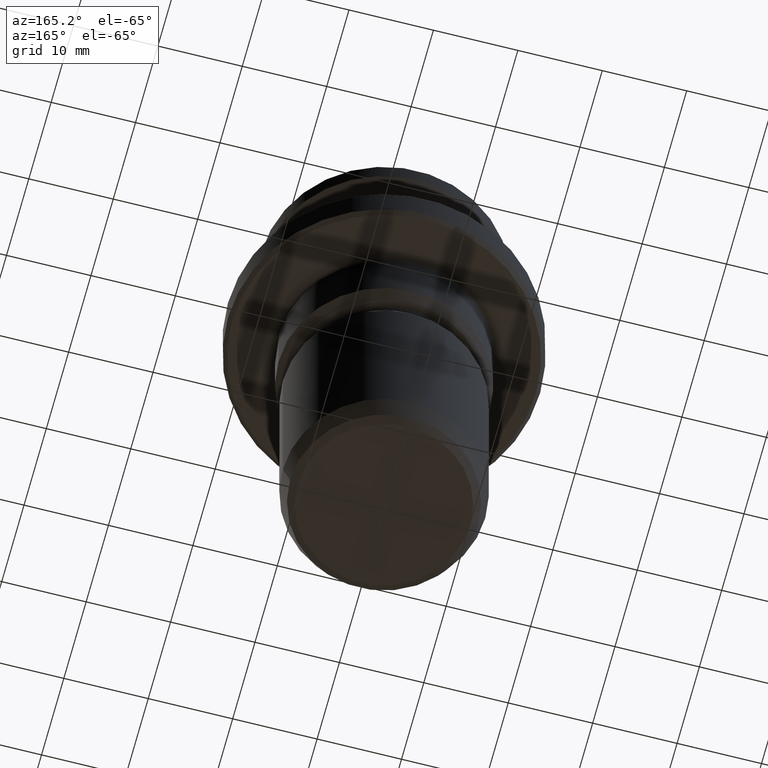
[diagram: clean part render]
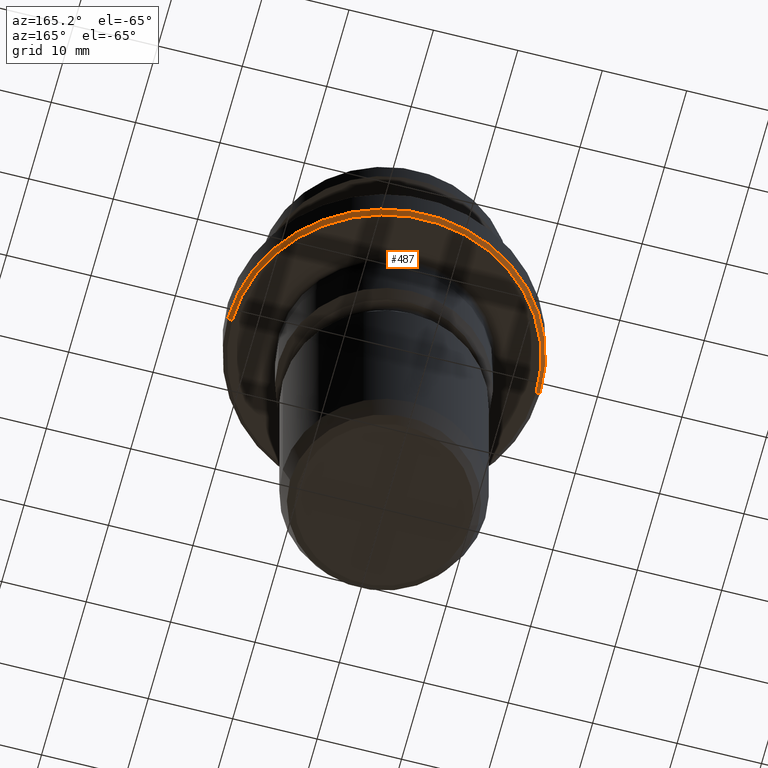
[diagram: same view with one face highlighted and labeled with its STEP entity id]
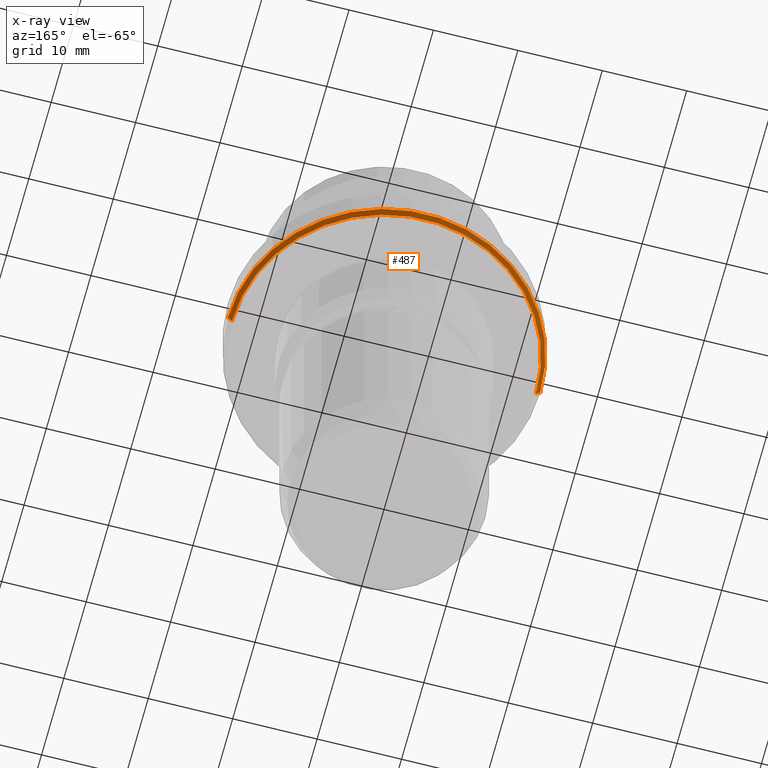
[diagram: x-ray of the same camera — body ghosted, the highlighted face saturated]
A machine part, auxiliary view. The second image highlights one B-rep face of the part: STEP entity #487.
The next image is the same camera in x-ray: the body ghosted, the highlighted face saturated — about 0% of this face is hidden behind the body in this view.
In plain terms, the highlighted conical surface has half-angle 45 deg.
Its self-contained STEP definition (entity closure, byte-faithful):
#2 = AXIS2_PLACEMENT_3D ( 'NONE', #138, #897, #1216 ) ;
#4 = VECTOR ( 'NONE', #873, 1000.000000000000000 ) ;
#9 = VECTOR ( 'NONE', #797, 1000.000000000000000 ) ;
#65 = EDGE_CURVE ( 'NONE', #967, #416, #884, .T. ) ;
#79 = DIRECTION ( 'NONE',  ( 1.000000000000000000, 0.0000000000000000000, 0.0000000000000000000 ) ) ;
#125 = CARTESIAN_POINT ( 'NONE',  ( -18.00000000000000000, 2.204364238465235400E-015, -25.50000000000000400 ) ) ;
#138 = CARTESIAN_POINT ( 'NONE',  ( 0.0000000000000000000, 0.0000000000000000000, -25.50000000000000400 ) ) ;
#143 = FACE_OUTER_BOUND ( 'NONE', #236, .T. ) ;
#233 = DIRECTION ( 'NONE',  ( -0.0000000000000000000, -0.0000000000000000000, 1.000000000000000000 ) ) ;
#236 = EDGE_LOOP ( 'NONE', ( #745, #981, #768, #651 ) ) ;
#238 = CARTESIAN_POINT ( 'NONE',  ( 18.00000000000000000, 0.0000000000000000000, -25.50000000000000400 ) ) ;
#255 = LINE ( 'NONE', #125, #4 ) ;
#258 = LINE ( 'NONE', #238, #9 ) ;
#292 = VERTEX_POINT ( 'NONE', #637 ) ;
#305 = VERTEX_POINT ( 'NONE', #949 ) ;
#340 = AXIS2_PLACEMENT_3D ( 'NONE', #524, #619, #79 ) ;
#416 = VERTEX_POINT ( 'NONE', #796 ) ;
#487 = ADVANCED_FACE ( 'NONE', ( #143 ), #1084, .T. ) ;
#496 = CIRCLE ( 'NONE', #672, 18.50000000000000000 ) ;
#524 = CARTESIAN_POINT ( 'NONE',  ( 0.0000000000000000000, 0.0000000000000000000, -25.50000000000000400 ) ) ;
#619 = DIRECTION ( 'NONE',  ( -0.0000000000000000000, -0.0000000000000000000, 1.000000000000000000 ) ) ;
#637 = CARTESIAN_POINT ( 'NONE',  ( 18.50000000000000000, 0.0000000000000000000, -25.00000000000000000 ) ) ;
#651 = ORIENTED_EDGE ( 'NONE', *, *, #811, .F. ) ;
#672 = AXIS2_PLACEMENT_3D ( 'NONE', #795, #233, #896 ) ;
#745 = ORIENTED_EDGE ( 'NONE', *, *, #65, .T. ) ;
#768 = ORIENTED_EDGE ( 'NONE', *, *, #825, .F. ) ;
#795 = CARTESIAN_POINT ( 'NONE',  ( 0.0000000000000000000, 0.0000000000000000000, -25.00000000000000000 ) ) ;
#796 = CARTESIAN_POINT ( 'NONE',  ( -18.00000000000000000, 2.234980408443919200E-015, -25.50000000000000400 ) ) ;
#797 = DIRECTION ( 'NONE',  ( 0.7071067811865474600, 0.0000000000000000000, 0.7071067811865475700 ) ) ;
#811 = EDGE_CURVE ( 'NONE', #967, #292, #258, .T. ) ;
#825 = EDGE_CURVE ( 'NONE', #292, #305, #496, .T. ) ;
#873 = DIRECTION ( 'NONE',  ( -0.7071067811865474600, 8.659560562354931600E-017, 0.7071067811865475700 ) ) ;
#884 = CIRCLE ( 'NONE', #340, 18.00000000000000000 ) ;
#896 = DIRECTION ( 'NONE',  ( 1.000000000000000000, 0.0000000000000000000, 0.0000000000000000000 ) ) ;
#897 = DIRECTION ( 'NONE',  ( -0.0000000000000000000, -0.0000000000000000000, 1.000000000000000000 ) ) ;
#949 = CARTESIAN_POINT ( 'NONE',  ( -18.50000000000000000, 2.265596578422603000E-015, -25.00000000000000000 ) ) ;
#967 = VERTEX_POINT ( 'NONE', #979 ) ;
#979 = CARTESIAN_POINT ( 'NONE',  ( 18.00000000000000000, 0.0000000000000000000, -25.50000000000000400 ) ) ;
#981 = ORIENTED_EDGE ( 'NONE', *, *, #1126, .T. ) ;
#1084 = CONICAL_SURFACE ( 'NONE', #2, 18.00000000000000000, 0.7853981633974482800 ) ;
#1126 = EDGE_CURVE ( 'NONE', #416, #305, #255, .T. ) ;
#1216 = DIRECTION ( 'NONE',  ( 1.000000000000000000, 0.0000000000000000000, 0.0000000000000000000 ) ) ;